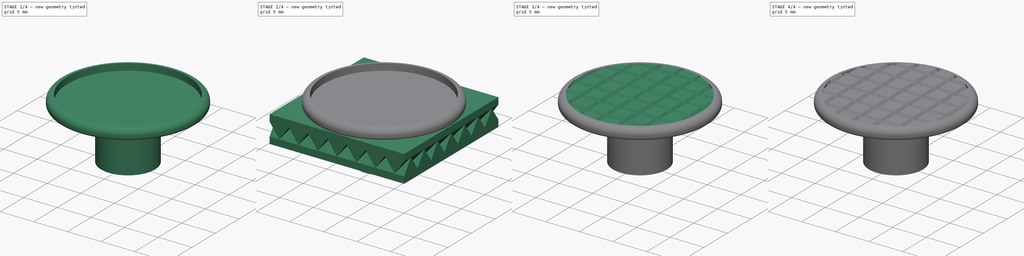
[diagram: build sequence overview — one tinted view per stage of 4, left to right]
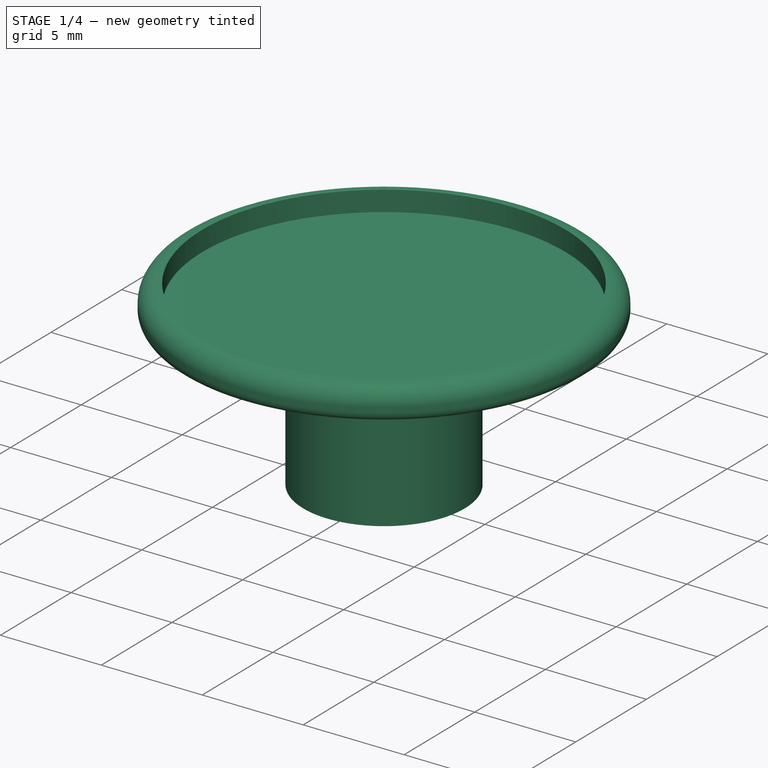
[diagram: stage 1 of 4 — iso view after this stage's code; geometry added in this stage tinted green]
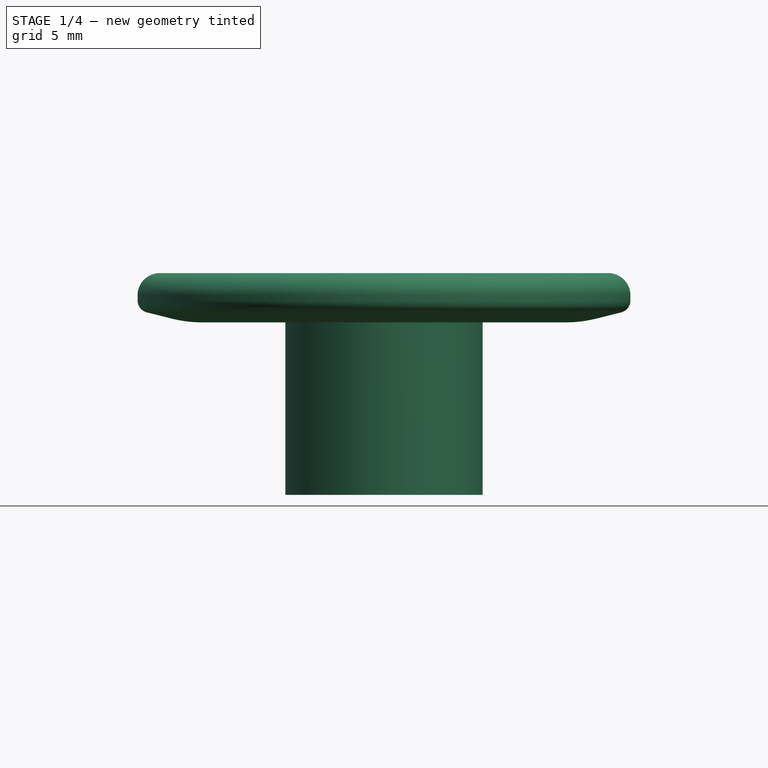
[diagram: stage 1 of 4 — front view after this stage's code; geometry added in this stage tinted green]
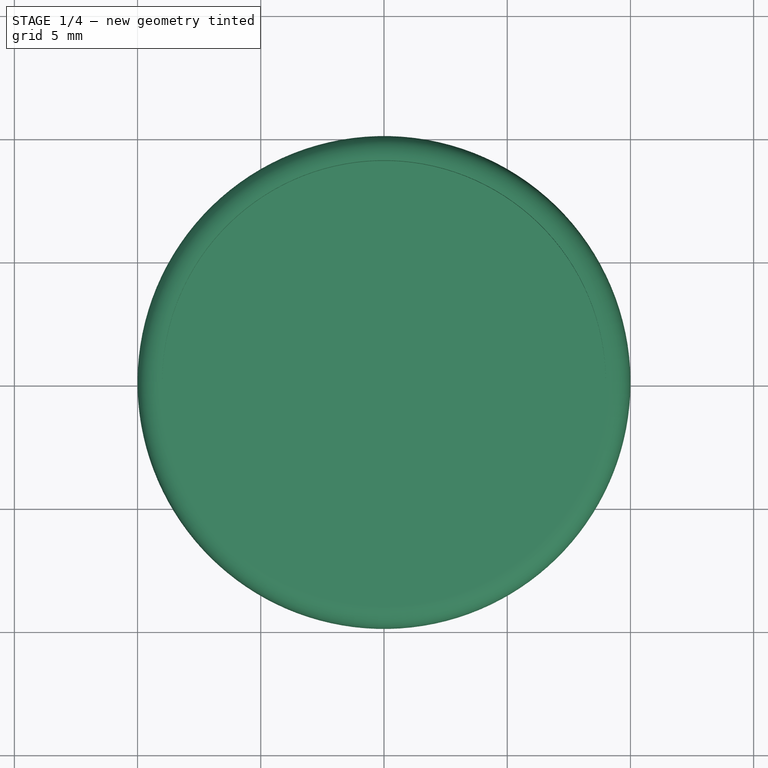
[diagram: stage 1 of 4 — top view after this stage's code; geometry added in this stage tinted green]
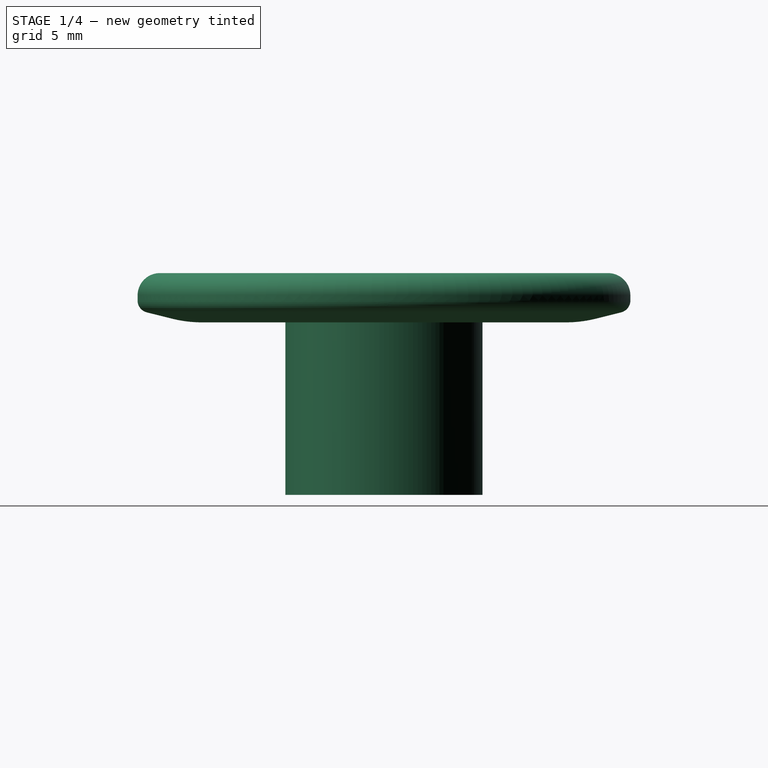
[diagram: stage 1 of 4 — right view after this stage's code; geometry added in this stage tinted green]
FCSTD DOCUMENT  (FreeCAD 0.16RUnknown)
Label: handle-knurled
License: All rights reserved
LicenseURL: http://en.wikipedia.org/wiki/All_rights_reserved
objects: Sketcher::SketchObject×3, PartDesign::Pad×2, Part::Cut×2, Part::Cylinder×2, PartDesign::Revolution×1, Part::MultiCommon×1, Part::Fillet×1, Part::MultiFuse×1
note: 16 computed .brp shape members not serialized (recipe doc carries the construction recipe); baked Part::Feature solids carry a one-line shape summary decoded from their .brp

FEATURE [Sketcher::SketchObject] Sketch  label="Base Sketch"
  Placement = pos=(0,0,0) rot=(1,0,0;1.5708rad)
  sketch-geometry (9):
    g0: LineSegment StartX=0 StartY=0 StartZ=0 EndX=4 EndY=0 EndZ=0
    g1: LineSegment StartX=4 StartY=0 StartZ=0 EndX=4 EndY=7 EndZ=0
    g2: LineSegment StartX=10 StartY=7.5 StartZ=0 EndX=10 EndY=9 EndZ=0
    g3: LineSegment StartX=0 StartY=8 StartZ=0 EndX=0 EndY=0 EndZ=0
    g4: LineSegment StartX=0 StartY=8 StartZ=0 EndX=9 EndY=8 EndZ=0
    g5: LineSegment StartX=4 StartY=7 StartZ=0 EndX=8 EndY=7 EndZ=0
    g6: LineSegment StartX=8 StartY=7 StartZ=0 EndX=10 EndY=7.5 EndZ=0
    g7: LineSegment StartX=9 StartY=8 StartZ=0 EndX=9 EndY=9 EndZ=0
    g8: LineSegment StartX=9 StartY=9 StartZ=0 EndX=10 EndY=9 EndZ=0
  constraints (26):
    c: Coincident(g-1,g0)
    c: Horizontal(g0)
    c: Coincident(g0,g1)
    c: Vertical(g1)
    c: Vertical(g2)
    c: Coincident(g3,g0)
    c: DistanceX(g0,g0) = 4  'Bearing Inner Radius'
    c: PointOnObject(g3,g-2)  'Constraint53'
    c: Coincident(g4,g3)  'Constraint49'
    c: Horizontal(g4)  'Constraint44'
    c: DistanceX(g-1,g2) = 10  'Handle Radius'
    c: Coincident(g5,g1)  'Constraint24'
    c: Horizontal(g5)  'Constraint20'
    c: DistanceY(g0,g5) = 7  'Bearing Width'
    c: DistanceX(g-1,g5) = 8  'Step Radius'
    c: Coincident(g6,g5)  'Constraint32'
    c: Coincident(g6,g2)  'Constraint27'
    c: DistanceY(g5,g2) = 0.5  'Step Height'
    c: Coincident(g7,g4)  'Constraint19'
    c: Vertical(g7)
    c: DistanceY(g5,g7) = 2  'Handle Thickness'
    c: Coincident(g8,g7)
    c: Coincident(g8,g2)
    c: Horizontal(g8)
    c: DistanceY(g4,g7) = 1  'Knurling Height'
    c: DistanceX(g3,g4) = 9  'Knurling Radius'
FEATURE [PartDesign::Revolution] Revolution  label="Base Revolution"
  Angle = 360
  Axis = (0,0,1)
  Base = (0,0,0)
  Placement = pos=(0,0,0) rot=(1,0,0;1.5708rad)
  ReferenceAxis = -> Sketch [V_Axis]
  Reversed = true
  Sketch = -> Sketch
FEATURE [Part::Fillet] Fillet  label="Base Fillet"
  Base = -> Revolution
  Edges = 3 edges: [Edge4 r=5,Edge5 r=0.5,Edge7 r=0.9]
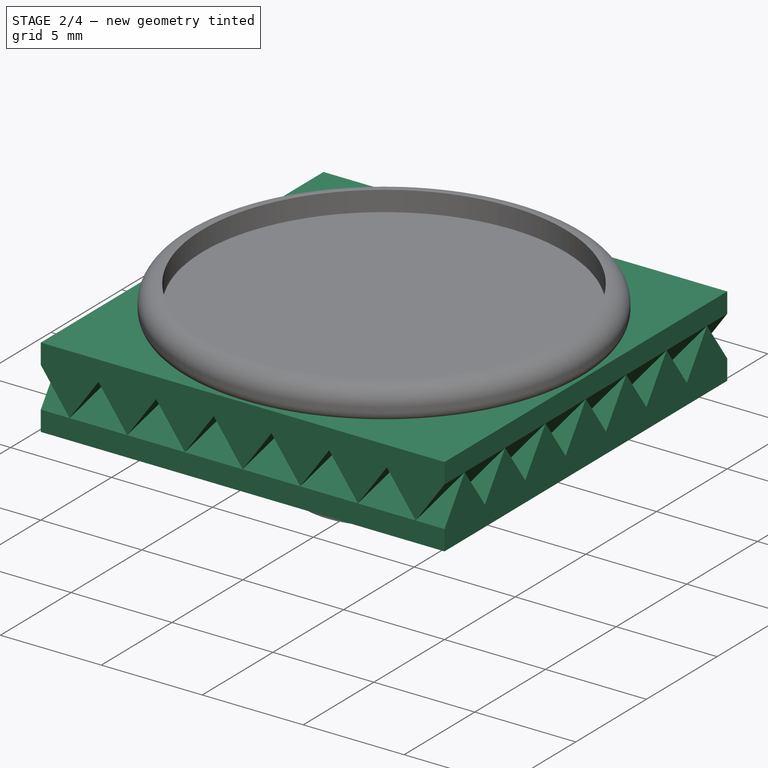
[diagram: stage 2 of 4 — iso view after this stage's code; geometry added in this stage tinted green]
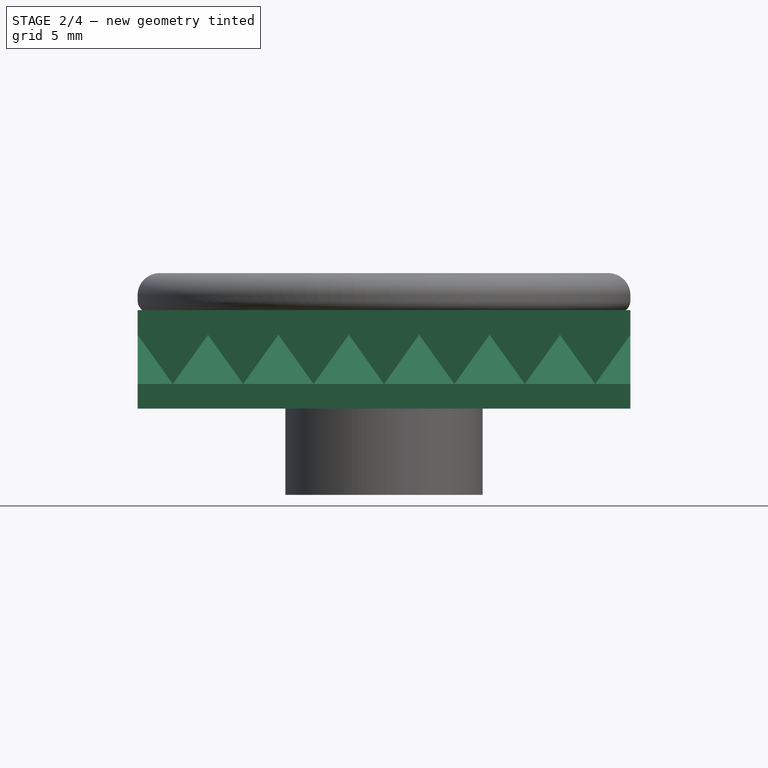
[diagram: stage 2 of 4 — front view after this stage's code; geometry added in this stage tinted green]
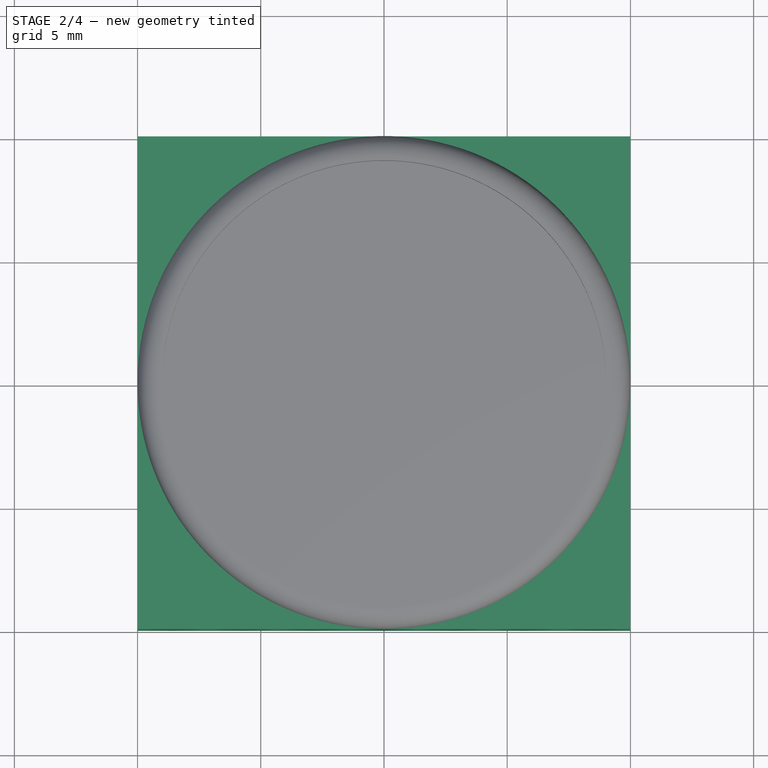
[diagram: stage 2 of 4 — top view after this stage's code; geometry added in this stage tinted green]
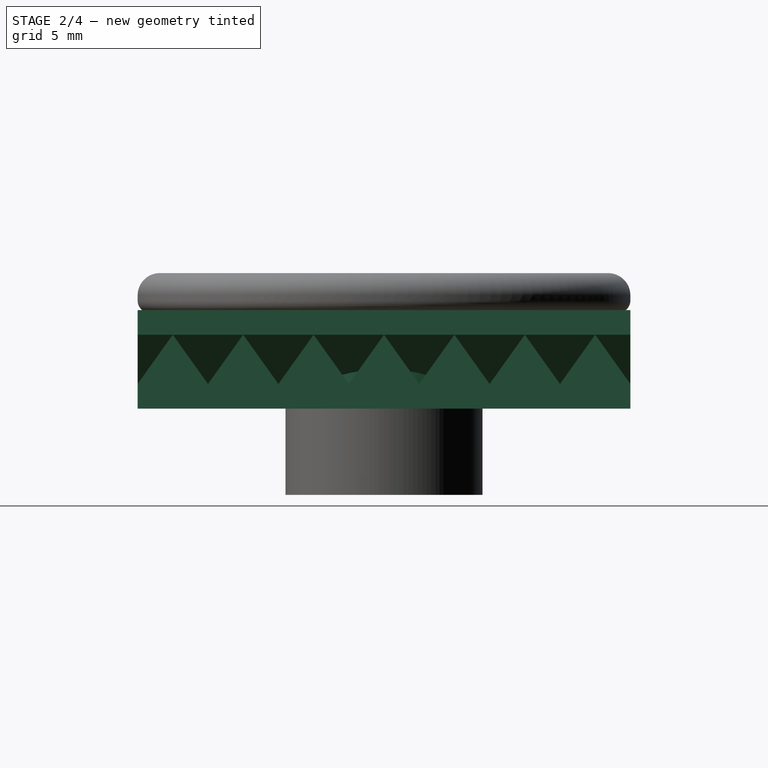
[diagram: stage 2 of 4 — right view after this stage's code; geometry added in this stage tinted green]
FEATURE [Sketcher::SketchObject] MirroredSketch  label="Knurling XZ Sketch"
  Placement = pos=(0,10,0) rot=(1,0,0;1.5708rad)
  sketch-geometry (19):
    g0: LineSegment StartX=7.14286 StartY=6.5 StartZ=0 EndX=5.71429 EndY=4.5 EndZ=0
    g1: LineSegment StartX=5.71429 StartY=4.5 StartZ=0 EndX=4.28571 EndY=6.5 EndZ=0
    g2: LineSegment StartX=4.28571 StartY=6.5 StartZ=0 EndX=2.85714 EndY=4.5 EndZ=0
    g3: LineSegment StartX=2.85714 StartY=4.5 StartZ=0 EndX=1.42857 EndY=6.5 EndZ=0
    g4: LineSegment StartX=1.42857 StartY=6.5 StartZ=0 EndX=0 EndY=4.5 EndZ=0
    g5: LineSegment StartX=0 StartY=4.5 StartZ=0 EndX=-1.42857 EndY=6.5 EndZ=0
    g6: LineSegment StartX=-1.42857 StartY=6.5 StartZ=0 EndX=-2.85714 EndY=4.5 EndZ=0
    g7: LineSegment StartX=-2.85714 StartY=4.5 StartZ=0 EndX=-4.28571 EndY=6.5 EndZ=0
    g8: LineSegment StartX=-4.28571 StartY=6.5 StartZ=0 EndX=-5.71429 EndY=4.5 EndZ=0
    g9: LineSegment StartX=-5.71429 StartY=4.5 StartZ=0 EndX=-7.14286 EndY=6.5 EndZ=0
    g10: LineSegment [constr] StartX=10 StartY=6.5 StartZ=0 EndX=-10 EndY=6.5 EndZ=0
    g11: LineSegment [constr] StartX=8.57143 StartY=4.5 StartZ=0 EndX=-8.57143 EndY=4.5 EndZ=0
    g12: LineSegment StartX=10 StartY=6.5 StartZ=0 EndX=10 EndY=7.5 EndZ=0
    g13: LineSegment StartX=10 StartY=7.5 StartZ=0 EndX=-10 EndY=7.5 EndZ=0
    g14: LineSegment StartX=-10 StartY=7.5 StartZ=0 EndX=-10 EndY=6.5 EndZ=0
    g15: LineSegment StartX=7.14286 StartY=6.5 StartZ=0 EndX=8.57143 EndY=4.5 EndZ=0
    g16: LineSegment StartX=8.57143 StartY=4.5 StartZ=0 EndX=10 EndY=6.5 EndZ=0
    g17: LineSegment StartX=-7.14286 StartY=6.5 StartZ=0 EndX=-8.57143 EndY=4.5 EndZ=0
    g18: LineSegment StartX=-8.57143 StartY=4.5 StartZ=0 EndX=-10 EndY=6.5 EndZ=0
  constraints (56):
    c: Coincident(g1,g2)
    c: Coincident(g2,g3)
    c: Coincident(g3,g4)
    c: Coincident(g4,g5)
    c: Coincident(g5,g6)
    c: Coincident(g6,g7)
    c: Coincident(g7,g8)
    c: Horizontal(g10)
    c: PointOnObject(g1,g10)
    c: PointOnObject(g3,g10)
    c: PointOnObject(g5,g10)
    c: PointOnObject(g7,g10)
    c: Equal(g0,g1)
    c: Equal(g1,g2)
    c: Equal(g2,g3)
    c: Equal(g3,g4)
    c: Equal(g4,g5)
    c: Equal(g5,g6)
    c: Equal(g6,g7)
    c: Equal(g7,g8)
    c: Equal(g8,g9)
    c: Horizontal(g11)
    c: PointOnObject(g0,g11)
    c: PointOnObject(g2,g11)
    c: PointOnObject(g4,g11)
    c: PointOnObject(g6,g11)
    c: PointOnObject(g8,g11)
    c: Coincident(g12,g13)
    c: Horizontal(g13)
    c: Coincident(g13,g14)
    c: Vertical(g14)
    c: Vertical(g12)
    c: Coincident(g15,g16)
    c: Coincident(g17,g18)
    c: Coincident(g15,g0)
    c: Coincident(g16,g12)
    c: PointOnObject(g0,g10)
    c: Coincident(g10,g12)
    c: Equal(g0,g15)
    c: Equal(g15,g16)
    c: Coincident(g0,g1)
    c: PointOnObject(g15,g11)
    c: Coincident(g11,g15)
    c: Coincident(g9,g8)
    c: Coincident(g17,g11)
    c: Coincident(g9,g17)
    c: Equal(g18,g17)
    c: Equal(g17,g9)
    c: PointOnObject(g9,g10)
    c: Coincident(g18,g10)
    c: PointOnObject(g4,g-2)
    c: Coincident(g10,g14)
    c: DistanceY(g11,g10) = 2
    c: Distance(g13,g10) = 1
    c: DistanceX(g13,g-1) = 10
    c: DistanceY(g-1,g11) = 4.5
FEATURE [PartDesign::Pad] Pad  label="Knurling XZ Pad"
  Length = 20
  Length2 = 100
  Placement = pos=(0,10,0) rot=(1,0,0;1.5708rad)
  Sketch = -> MirroredSketch
  Type = 0
FEATURE [Sketcher::SketchObject] MirroredSketch002  label="Knurling YZ Sketch"
  Placement = pos=(-10,0,0) rot=(0.57735,0.57735,0.57735;2.0944rad)
  sketch-geometry (19):
    g0: LineSegment StartX=7.14286 StartY=4.5 StartZ=0 EndX=5.71429 EndY=6.5 EndZ=0
    g1: LineSegment StartX=5.71429 StartY=6.5 StartZ=0 EndX=4.28571 EndY=4.5 EndZ=0
    g2: LineSegment StartX=4.28571 StartY=4.5 StartZ=0 EndX=2.85714 EndY=6.5 EndZ=0
    g3: LineSegment StartX=2.85714 StartY=6.5 StartZ=0 EndX=1.42857 EndY=4.5 EndZ=0
    g4: LineSegment StartX=1.42857 StartY=4.5 StartZ=0 EndX=0 EndY=6.5 EndZ=0
    g5: LineSegment StartX=0 StartY=6.5 StartZ=0 EndX=-1.42857 EndY=4.5 EndZ=0
    g6: LineSegment StartX=-1.42857 StartY=4.5 StartZ=0 EndX=-2.85714 EndY=6.5 EndZ=0
    g7: LineSegment StartX=-2.85714 StartY=6.5 StartZ=0 EndX=-4.28571 EndY=4.5 EndZ=0
    g8: LineSegment StartX=-4.28571 StartY=4.5 StartZ=0 EndX=-5.71429 EndY=6.5 EndZ=0
    g9: LineSegment StartX=-5.71429 StartY=6.5 StartZ=0 EndX=-7.14286 EndY=4.5 EndZ=0
    g10: LineSegment [constr] StartX=10 StartY=4.5 StartZ=0 EndX=-10 EndY=4.5 EndZ=0
    g11: LineSegment [constr] StartX=8.57143 StartY=6.5 StartZ=0 EndX=-8.57143 EndY=6.5 EndZ=0
    g12: LineSegment StartX=10 StartY=4.5 StartZ=0 EndX=10 EndY=3.5 EndZ=0
    g13: LineSegment StartX=10 StartY=3.5 StartZ=0 EndX=-10 EndY=3.5 EndZ=0
    g14: LineSegment StartX=-10 StartY=3.5 StartZ=0 EndX=-10 EndY=4.5 EndZ=0
    g15: LineSegment StartX=7.14286 StartY=4.5 StartZ=0 EndX=8.57143 EndY=6.5 EndZ=0
    g16: LineSegment StartX=8.57143 StartY=6.5 StartZ=0 EndX=10 EndY=4.5 EndZ=0
    g17: LineSegment StartX=-7.14286 StartY=4.5 StartZ=0 EndX=-8.57143 EndY=6.5 EndZ=0
    g18: LineSegment StartX=-8.57143 StartY=6.5 StartZ=0 EndX=-10 EndY=4.5 EndZ=0
  constraints (56):
    c: Coincident(g1,g2)
    c: Coincident(g2,g3)
    c: Coincident(g3,g4)
    c: Coincident(g4,g5)
    c: Coincident(g5,g6)
    c: Coincident(g6,g7)
    c: Coincident(g7,g8)
    c: Horizontal(g10)
    c: PointOnObject(g1,g10)
    c: PointOnObject(g3,g10)
    c: PointOnObject(g5,g10)
    c: PointOnObject(g7,g10)
    c: Equal(g0,g1)
    c: Equal(g1,g2)
    c: Equal(g2,g3)
    c: Equal(g3,g4)
    c: Equal(g4,g5)
    c: Equal(g5,g6)
    c: Equal(g6,g7)
    c: Equal(g7,g8)
    c: Equal(g8,g9)
    c: Horizontal(g11)
    c: PointOnObject(g0,g11)
    c: PointOnObject(g2,g11)
    c: PointOnObject(g4,g11)
    c: PointOnObject(g6,g11)
    c: PointOnObject(g8,g11)
    c: Coincident(g12,g13)
    c: Horizontal(g13)
    c: Coincident(g13,g14)
    c: Vertical(g14)
    c: Vertical(g12)
    c: Coincident(g15,g16)
    c: Coincident(g17,g18)
    c: Coincident(g15,g0)
    c: Coincident(g16,g12)
    c: PointOnObject(g0,g10)
    c: Coincident(g10,g12)
    c: Equal(g0,g15)
    c: Equal(g15,g16)
    c: Coincident(g0,g1)
    c: PointOnObject(g15,g11)
    c: Coincident(g11,g15)
    c: Coincident(g9,g8)
    c: Coincident(g17,g11)
    c: Coincident(g9,g17)
    c: Equal(g18,g17)
    c: Equal(g17,g9)
    c: PointOnObject(g9,g10)
    c: Coincident(g18,g10)
    c: Coincident(g10,g14)
    c: DistanceY(g10,g11) = 2
    c: PointOnObject(g4,g-2)
    c: DistanceX(g10,g4) = 10
    c: DistanceY(g-1,g13) = 3.5
    c: DistanceY(g13,g10) = 1
FEATURE [PartDesign::Pad] Pad001  label="Knurling YZ Pad"
  Length = 20
  Length2 = 100
  Placement = pos=(-10,0,0) rot=(0.57735,0.57735,0.57735;2.0944rad)
  Sketch = -> MirroredSketch002
  Type = 0
FEATURE [Part::Cylinder] Cylinder  label="Knurling Cylinder"
  Angle = 360
  Height = 1
  Placement = pos=(0,0,4) rot=(0,0,1;0rad)
  Radius = 9
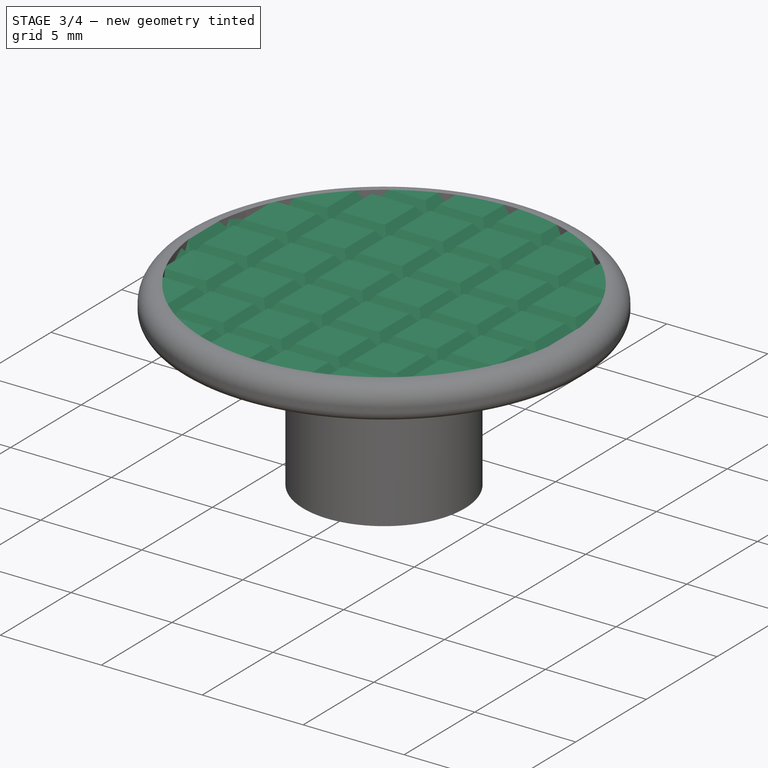
[diagram: stage 3 of 4 — iso view after this stage's code; geometry added in this stage tinted green]
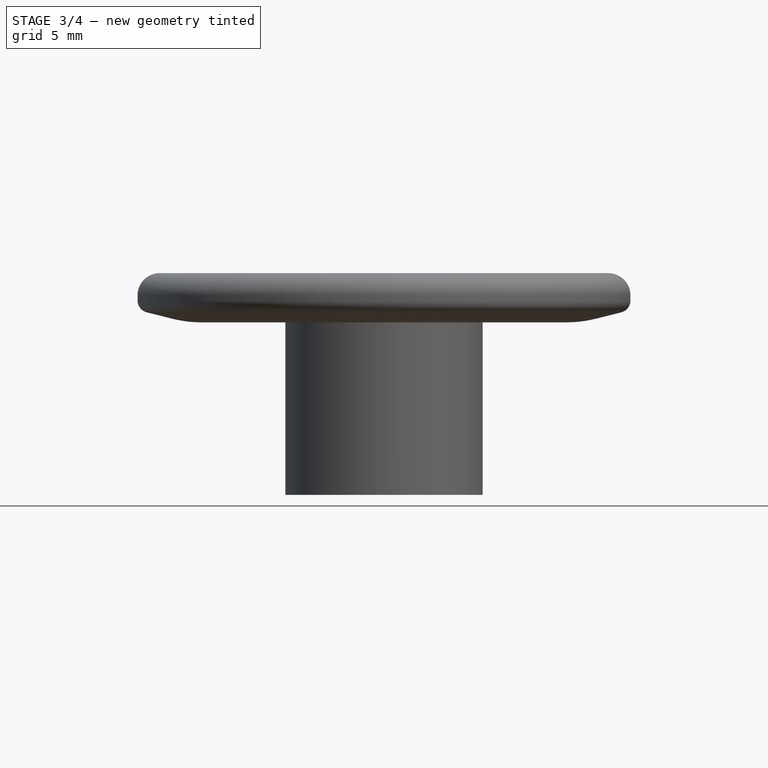
[diagram: stage 3 of 4 — front view after this stage's code; geometry added in this stage tinted green]
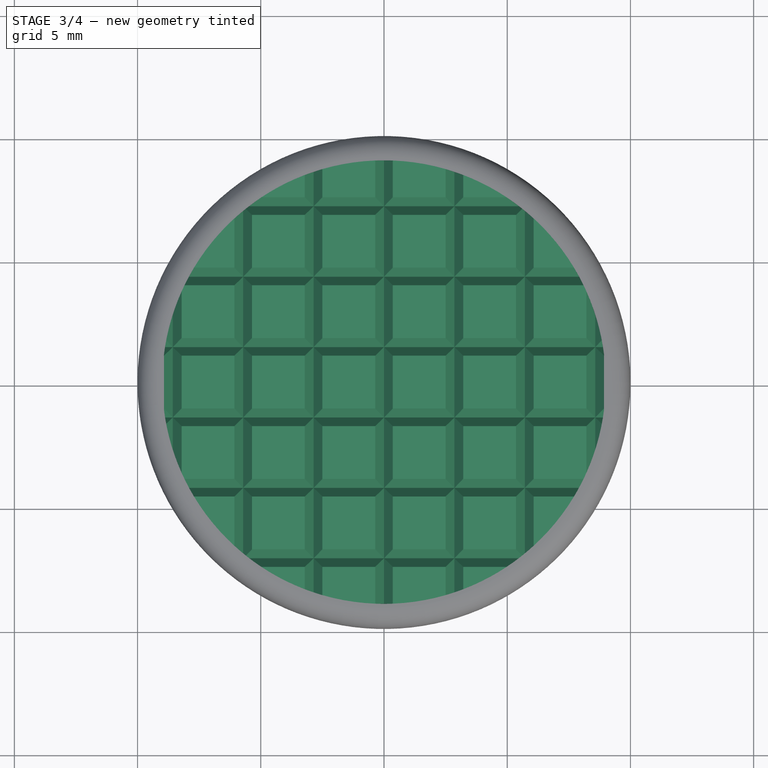
[diagram: stage 3 of 4 — top view after this stage's code; geometry added in this stage tinted green]
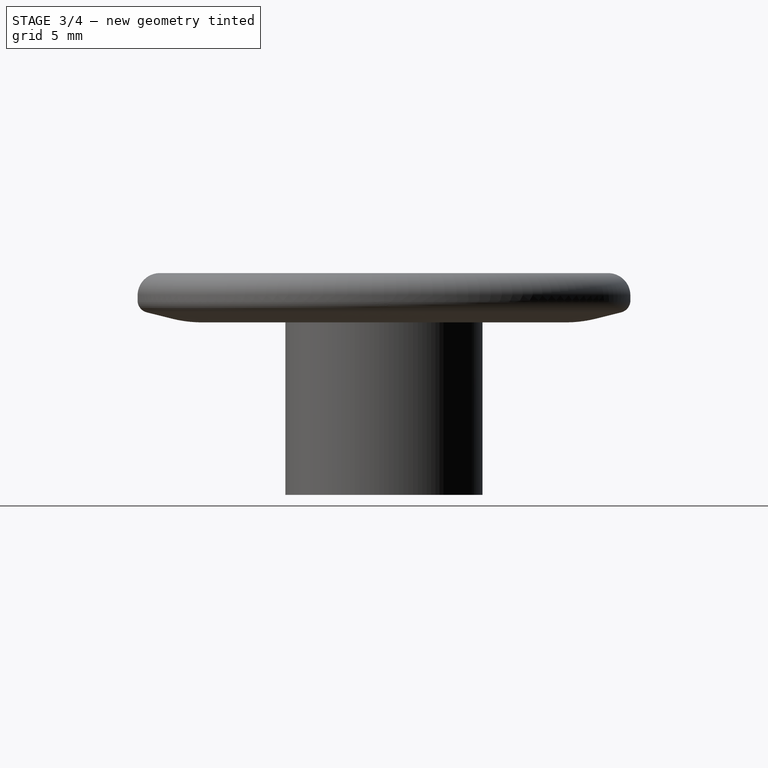
[diagram: stage 3 of 4 — right view after this stage's code; geometry added in this stage tinted green]
FEATURE [Part::Cut] Cut  label="Knurling Cut"
  Base = -> Pad001
  Tool = -> Pad
FEATURE [Part::MultiCommon] Common  label="Knurling"
  Placement = pos=(0,0,4) rot=(0,0,1;0rad)
  Shapes = -> [Cut,Cylinder]
FEATURE [Part::MultiFuse] Fusion  label="Handle Fusion"
  Shapes = -> [Common,Fillet]
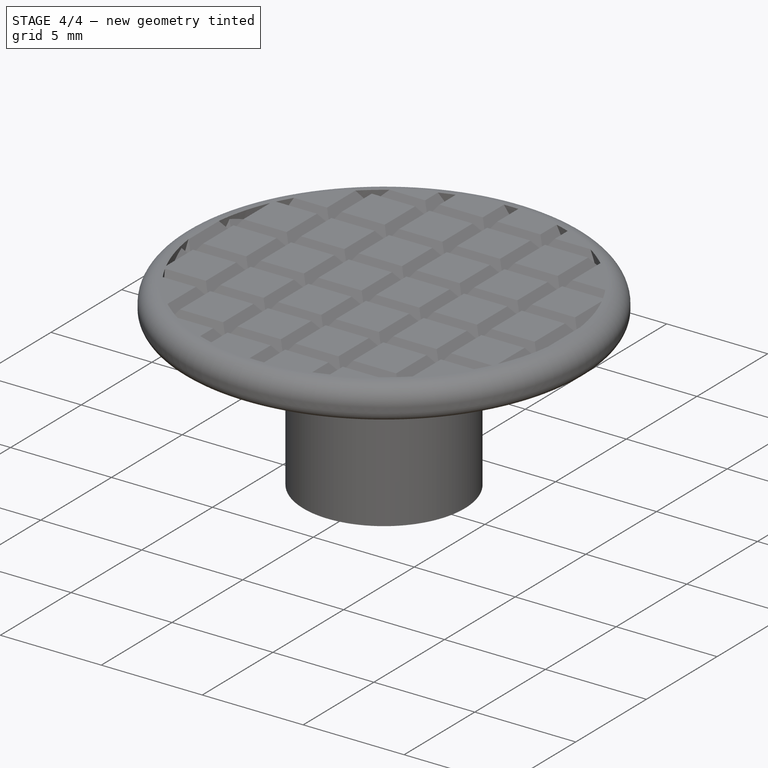
[diagram: stage 4 of 4 — iso view after this stage's code; geometry added in this stage tinted green]
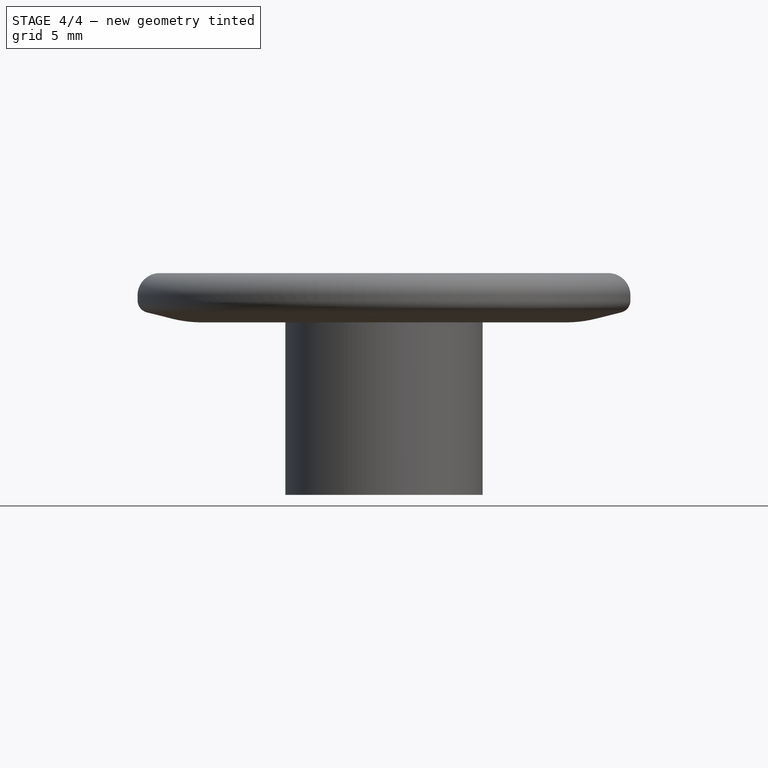
[diagram: stage 4 of 4 — front view after this stage's code; geometry added in this stage tinted green]
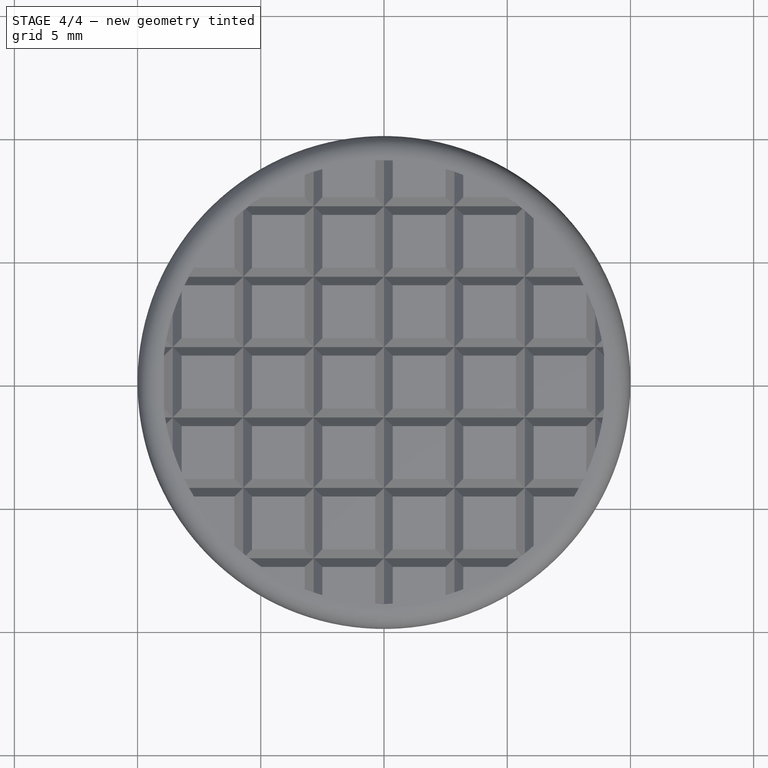
[diagram: stage 4 of 4 — top view after this stage's code; geometry added in this stage tinted green]
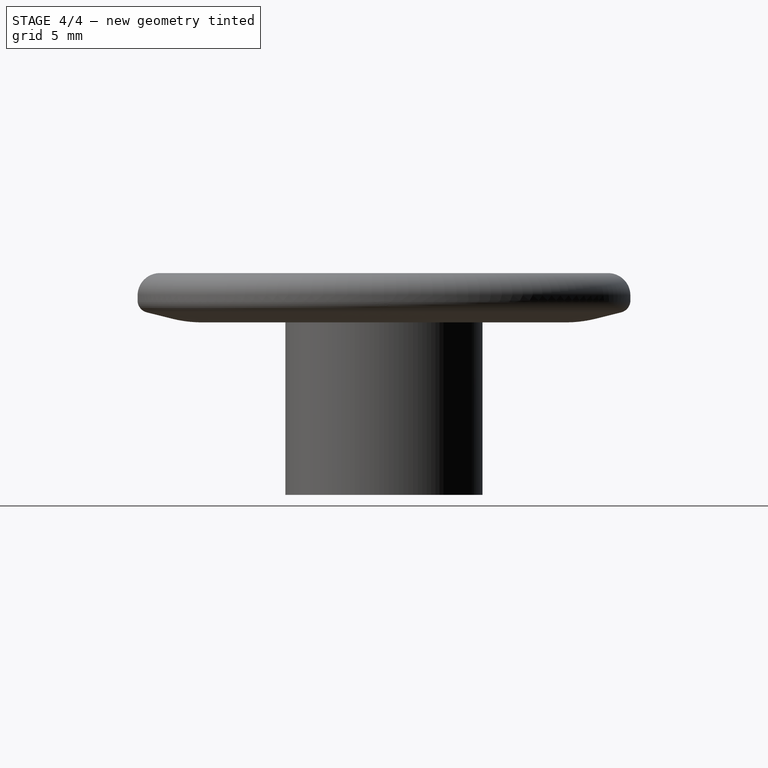
[diagram: stage 4 of 4 — right view after this stage's code; geometry added in this stage tinted green]
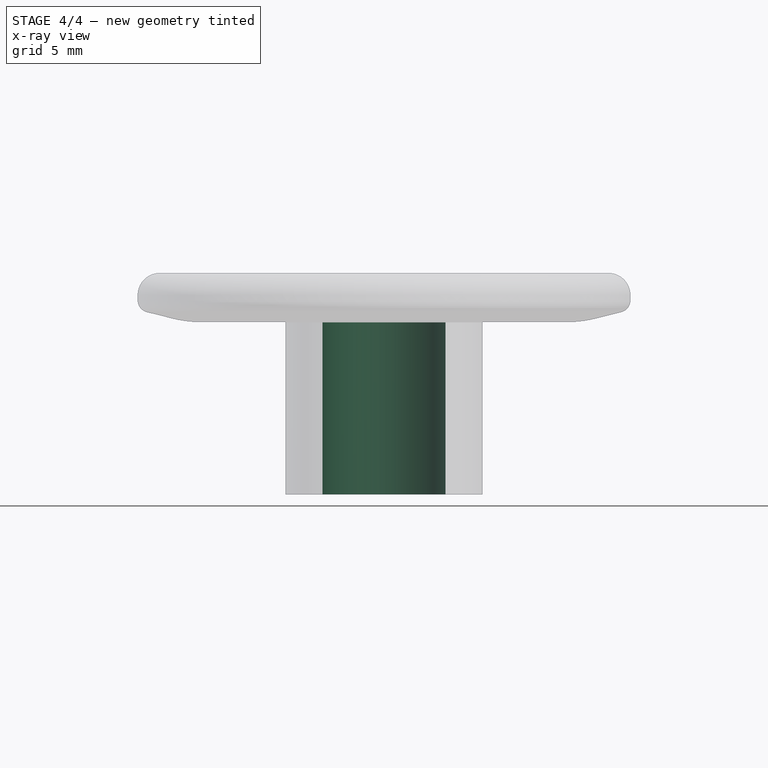
[diagram: stage 4 of 4 — x-ray composite at the front view; earlier geometry ghosted, this stage's added geometry solid]
FEATURE [Part::Cylinder] Cylinder001  label="Handle Pocket"
  Angle = 360
  Height = 7
  Radius = 2.5
FEATURE [Part::Cut] Cut001  label="Handle"
  Base = -> Fusion
  Tool = -> Cylinder001
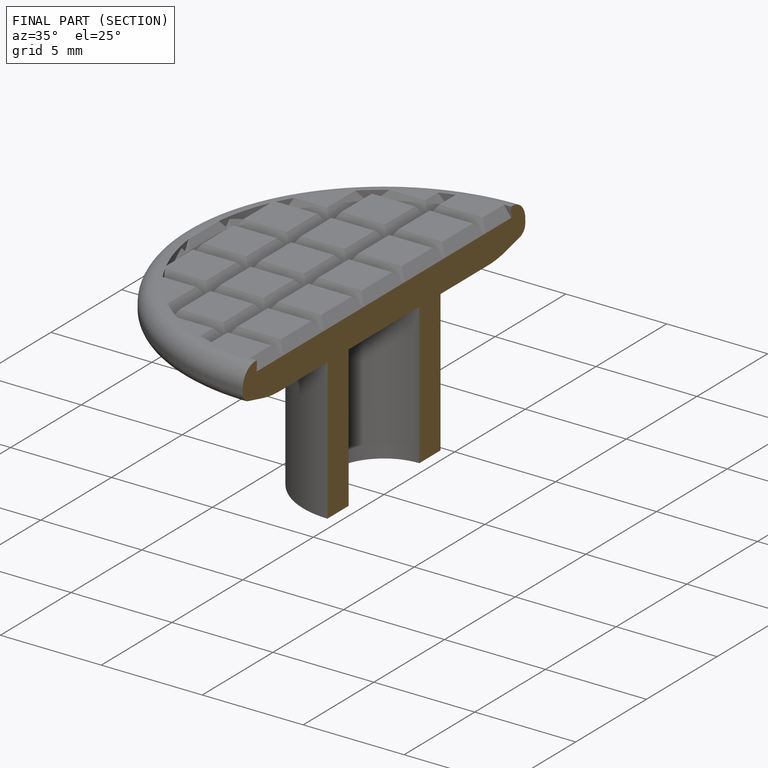
[diagram: finished part — half-section view (interior)]
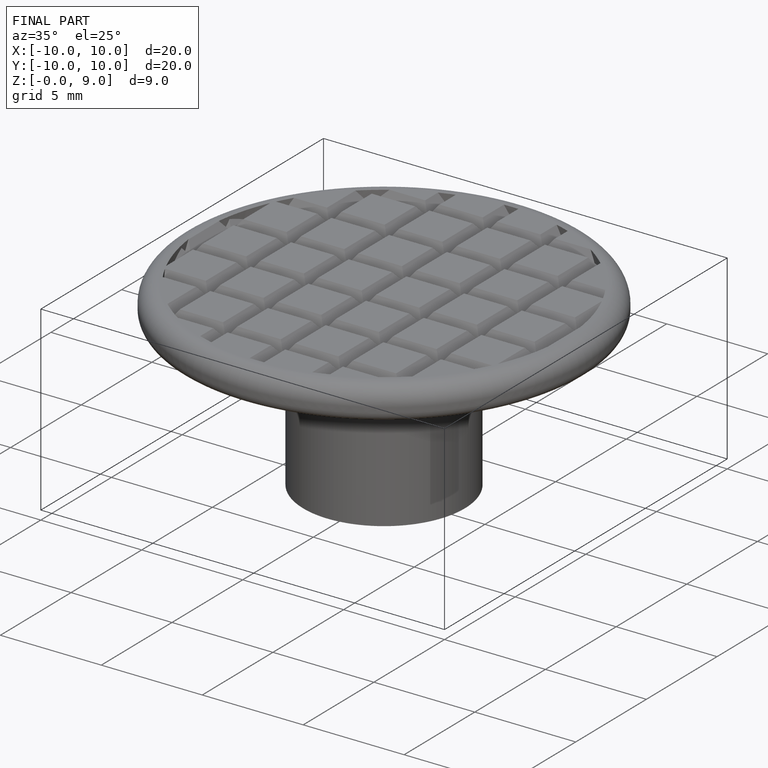
[diagram: finished part — iso view with bounding-box wireframe]
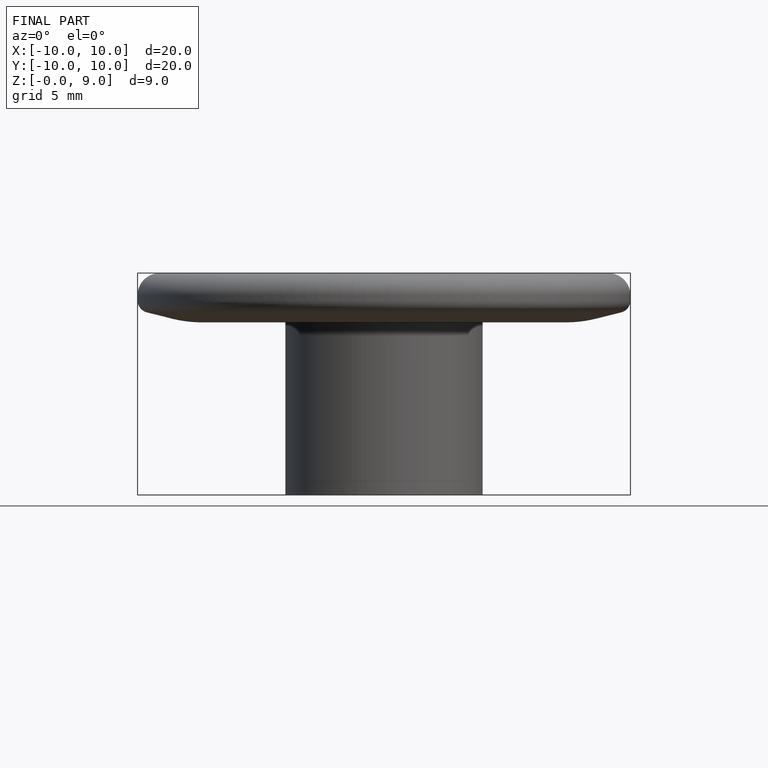
[diagram: finished part — front view with bounding-box wireframe]
